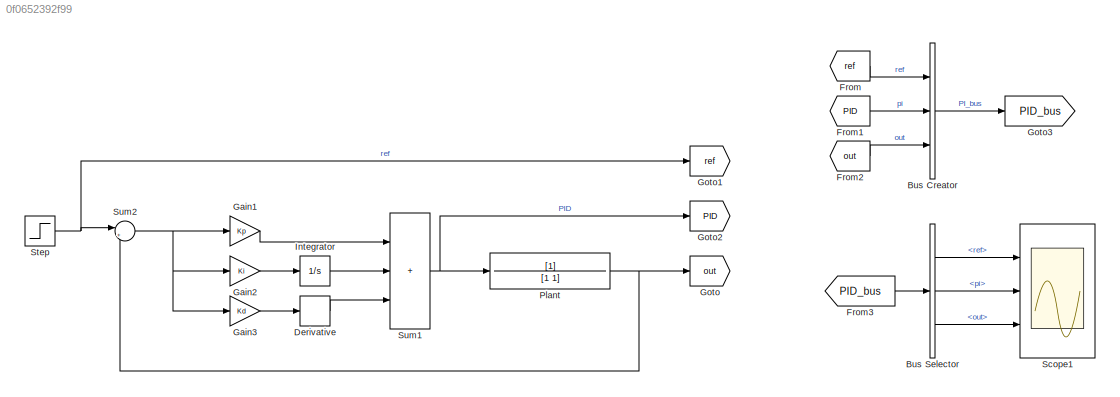
MODEL slx_0f0652392f99
KIND model
CONFIG AbsTol = auto
CONFIG EnableMultiTasking = off
CONFIG FixedStep = auto
CONFIG MaxStep = auto
CONFIG MinStep = auto
CONFIG RelTol = 1e-3
CONFIG SampleTimeConstraint = Unconstrained
CONFIG SolverName = VariableStepAuto
CONFIG StartTime = 0.0
CONFIG StopTime = 10.0
BLOCK [BusCreator] Bus Creator
  DisplayOption = bar
  InheritFromInputs = on
  Inputs = 3
  Ports = [3, 1]
BLOCK [BusSelector] Bus Selector
  OutputSignals = ref,pi,out
  Ports = [1, 3]
BLOCK [Derivative] Derivative
BLOCK [From] From
  GotoTag = ref
  TagVisibility = global
BLOCK [From] From1
  GotoTag = PID
  TagVisibility = global
BLOCK [From] From2
  GotoTag = out
  TagVisibility = global
BLOCK [From] From3
  GotoTag = PID_bus
  TagVisibility = global
BLOCK [Gain] Gain1
  Gain = Kp
BLOCK [Gain] Gain2
  Gain = Ki
BLOCK [Gain] Gain3
  Gain = Kd
BLOCK [Goto] Goto
  GotoTag = out
  TagVisibility = global
BLOCK [Goto] Goto1
  GotoTag = ref
  TagVisibility = global
BLOCK [Goto] Goto2
  GotoTag = PID
  TagVisibility = global
BLOCK [Goto] Goto3
  GotoTag = PID_bus
  TagVisibility = global
BLOCK [Integrator] Integrator
  Ports = [1, 1]
BLOCK [TransferFcn] Plant
  Denominator = [1 1]
BLOCK [Scope] Scope1
  Floating = off
  NumInputPorts = 3
  Ports = [3]
  ScopeSpecificationString = Simulink.scopes.TimeScopeBlockCfg('CurrentConfiguration', extmgr.ConfigurationSet(extmgr.Configuration('Core','General UI',true),extmgr.Configuration('Core','Source UI',true),extmgr.Configuration('Sources','WiredSimulink',true),extmgr.Configuration('Visuals','Time Domain',true,'SerializedDisplays',{struct('MinYLimReal','0.9','MaxYLimReal','1.1','YLabelReal','','MinYLimMag','0.9','MaxYLimMag','1.1'...<+2680ch>
BLOCK [Step] Step
  SampleTime = 0
  Time = 0
BLOCK [Sum] Sum1
  IconShape = rectangular
  Inputs = +++
  Ports = [3, 1]
BLOCK [Sum] Sum2
  Inputs = |++
  Ports = [2, 1]
LINE Bus Creator:1 -> Goto3:1
LINE Bus Selector:1 -> Scope1:1
LINE Bus Selector:2 -> Scope1:2
LINE Bus Selector:3 -> Scope1:3
LINE Derivative:1 -> Sum1:3
LINE From1:1 -> Bus Creator:2
LINE From2:1 -> Bus Creator:3
LINE From3:1 -> Bus Selector:1
LINE From:1 -> Bus Creator:1
LINE Gain1:1 -> Sum1:1
LINE Gain2:1 -> Integrator:1
LINE Gain3:1 -> Derivative:1
LINE Integrator:1 -> Sum1:2
NET Plant:1 -> Goto:1, Sum2:2
NET Step:1 -> Goto1:1, Sum2:1
NET Sum1:1 -> Goto2:1, Plant:1
NET Sum2:1 -> Gain1:1, Gain2:1, Gain3:1
note: NET lines group one-source signal fan-out (src -> all destinations, sorted); 1:1 wires keep LINE
